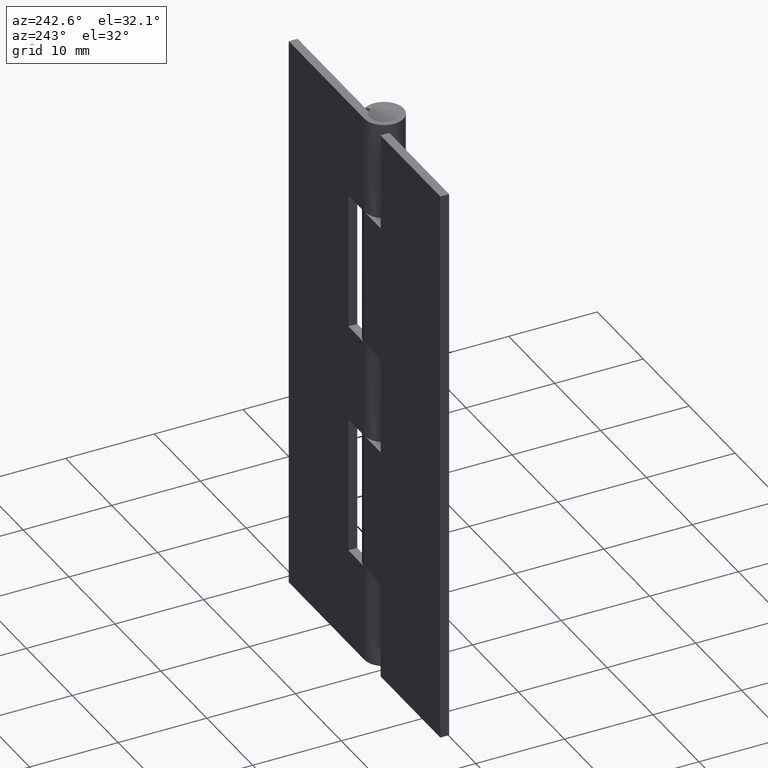
[diagram: clean part render]
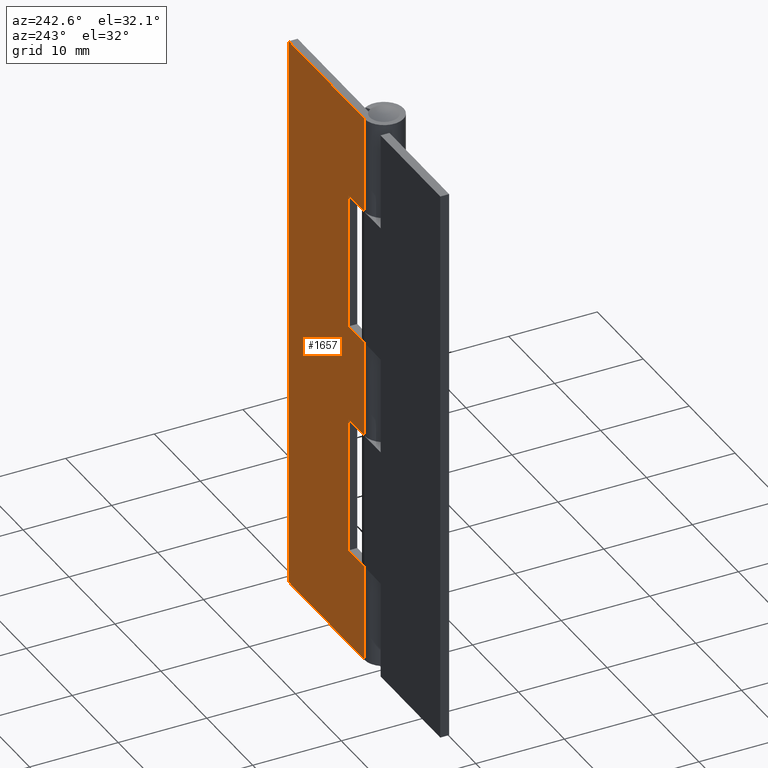
[diagram: same view with one face highlighted and labeled with its STEP entity id]
A machine part, auxiliary view. The second image highlights one B-rep face of the part: STEP entity #1657.
In plain terms, the highlighted face is a freeform B-spline surface patch.
Its self-contained STEP definition (entity closure, byte-faithful):
#1159=CARTESIAN_POINT('',(1.421085E-014,2.199996000000000,64.0));
#1160=VERTEX_POINT('',#1159);
#1161=CARTESIAN_POINT('',(1.431147E-014,2.199996000000000,53.0));
#1162=VERTEX_POINT('',#1161);
#1163=CARTESIAN_POINT('',(1.421085E-014,2.199996000000000,64.0));
#1164=CARTESIAN_POINT('',(1.431147E-014,2.199996000000000,53.0));
#1165=QUASI_UNIFORM_CURVE('',1,(#1163,#1164),.UNSPECIFIED.,.F.,.U.);
#1166=EDGE_CURVE('',#1160,#1162,#1165,.T.);
#1236=CARTESIAN_POINT('',(3.500000000000000,2.199996000000000,53.0));
#1237=VERTEX_POINT('',#1236);
#1238=CARTESIAN_POINT('',(3.500000000000000,2.199996000000000,53.0));
#1239=CARTESIAN_POINT('',(1.431147E-014,2.199996000000000,53.0));
#1240=QUASI_UNIFORM_CURVE('',1,(#1238,#1239),.UNSPECIFIED.,.F.,.U.);
#1241=EDGE_CURVE('',#1237,#1162,#1240,.T.);
#1261=CARTESIAN_POINT('',(3.500000000000000,2.199996000000000,37.500000000000000));
#1262=VERTEX_POINT('',#1261);
#1263=CARTESIAN_POINT('',(3.500000000000000,2.199996000000000,37.500000000000000));
#1264=CARTESIAN_POINT('',(3.500000000000000,2.199996000000000,53.0));
#1265=QUASI_UNIFORM_CURVE('',1,(#1263,#1264),.UNSPECIFIED.,.F.,.U.);
#1266=EDGE_CURVE('',#1262,#1237,#1265,.T.);
#1292=CARTESIAN_POINT('',(1.431147E-014,2.199996000000000,37.500000000000000));
#1293=VERTEX_POINT('',#1292);
#1294=CARTESIAN_POINT('',(1.431147E-014,2.199996000000000,37.500000000000000));
#1295=CARTESIAN_POINT('',(3.500000000000000,2.199996000000000,37.500000000000000));
#1296=QUASI_UNIFORM_CURVE('',1,(#1294,#1295),.UNSPECIFIED.,.F.,.U.);
#1297=EDGE_CURVE('',#1293,#1262,#1296,.T.);
#1337=CARTESIAN_POINT('',(3.500000000000000,2.199996000000000,26.500000000000000));
#1338=VERTEX_POINT('',#1337);
#1339=CARTESIAN_POINT('',(1.431147E-014,2.199996000000000,26.500000000000000));
#1340=VERTEX_POINT('',#1339);
#1341=CARTESIAN_POINT('',(3.500000000000000,2.199996000000000,26.500000000000000));
#1342=CARTESIAN_POINT('',(1.431147E-014,2.199996000000000,26.500000000000000));
#1343=QUASI_UNIFORM_CURVE('',1,(#1341,#1342),.UNSPECIFIED.,.F.,.U.);
#1344=EDGE_CURVE('',#1338,#1340,#1343,.T.);
#1398=CARTESIAN_POINT('',(3.500000000000000,2.199996000000000,11.0));
#1399=VERTEX_POINT('',#1398);
#1400=CARTESIAN_POINT('',(3.500000000000000,2.199996000000000,11.0));
#1401=CARTESIAN_POINT('',(3.500000000000000,2.199996000000000,26.500000000000000));
#1402=QUASI_UNIFORM_CURVE('',1,(#1400,#1401),.UNSPECIFIED.,.F.,.U.);
#1403=EDGE_CURVE('',#1399,#1338,#1402,.T.);
#1429=CARTESIAN_POINT('',(1.431147E-014,2.199996000000000,11.0));
#1430=VERTEX_POINT('',#1429);
#1431=CARTESIAN_POINT('',(1.431147E-014,2.199996000000000,11.0));
#1432=CARTESIAN_POINT('',(3.500000000000000,2.199996000000000,11.0));
#1433=QUASI_UNIFORM_CURVE('',1,(#1431,#1432),.UNSPECIFIED.,.F.,.U.);
#1434=EDGE_CURVE('',#1430,#1399,#1433,.T.);
#1476=CARTESIAN_POINT('',(1.421085E-014,2.199996000000000,0.0));
#1477=VERTEX_POINT('',#1476);
#1507=CARTESIAN_POINT('',(16.500000000000000,2.199996000000000,0.0));
#1508=VERTEX_POINT('',#1507);
#1509=CARTESIAN_POINT('',(1.421085E-014,2.199996000000000,0.0));
#1510=CARTESIAN_POINT('',(16.500000000000000,2.199996000000000,0.0));
#1511=QUASI_UNIFORM_CURVE('',1,(#1509,#1510),.UNSPECIFIED.,.F.,.U.);
#1512=EDGE_CURVE('',#1477,#1508,#1511,.T.);
#1538=CARTESIAN_POINT('',(16.500000000000000,2.199996000000000,64.0));
#1539=VERTEX_POINT('',#1538);
#1545=CARTESIAN_POINT('',(1.421085E-014,2.199996000000000,64.0));
#1546=CARTESIAN_POINT('',(16.500000000000000,2.199996000000000,64.0));
#1547=QUASI_UNIFORM_CURVE('',1,(#1545,#1546),.UNSPECIFIED.,.F.,.U.);
#1548=EDGE_CURVE('',#1160,#1539,#1547,.T.);
#1559=CARTESIAN_POINT('',(16.500000000000000,2.199996000000000,64.0));
#1560=CARTESIAN_POINT('',(16.500000000000000,2.199996000000000,0.0));
#1561=QUASI_UNIFORM_CURVE('',1,(#1559,#1560),.UNSPECIFIED.,.F.,.U.);
#1562=EDGE_CURVE('',#1539,#1508,#1561,.T.);
#1609=CARTESIAN_POINT('',(1.431147E-014,2.199996000000000,11.0));
#1610=CARTESIAN_POINT('',(1.421085E-014,2.199996000000000,0.0));
#1611=QUASI_UNIFORM_CURVE('',1,(#1609,#1610),.UNSPECIFIED.,.F.,.U.);
#1612=EDGE_CURVE('',#1430,#1477,#1611,.T.);
#1634=CARTESIAN_POINT('',(-0.824174968019784,2.199996000000000,-3.196799875955581));
#1635=CARTESIAN_POINT('',(-0.824174968019784,2.199996000000000,67.196801592569358));
#1636=CARTESIAN_POINT('',(17.324175410584289,2.199996000000000,-3.196799875955581));
#1637=CARTESIAN_POINT('',(17.324175410584289,2.199996000000000,67.196801592569358));
#1638=B_SPLINE_SURFACE_WITH_KNOTS('',1,1,((#1634,#1636),(#1635,#1637)),.UNSPECIFIED.,.F.,.F.,.U.,(2,2),(2,2),(0.0,70.393601468524935),(0.0,18.148350378604071),.UNSPECIFIED.);
#1639=CARTESIAN_POINT('',(1.431147E-014,2.199996000000000,37.500000000000000));
#1640=CARTESIAN_POINT('',(1.431147E-014,2.199996000000000,26.500000000000000));
#1641=QUASI_UNIFORM_CURVE('',1,(#1639,#1640),.UNSPECIFIED.,.F.,.U.);
#1642=EDGE_CURVE('',#1293,#1340,#1641,.T.);
#1643=ORIENTED_EDGE('',*,*,#1642,.F.);
#1644=ORIENTED_EDGE('',*,*,#1297,.T.);
#1645=ORIENTED_EDGE('',*,*,#1266,.T.);
#1646=ORIENTED_EDGE('',*,*,#1241,.T.);
#1647=ORIENTED_EDGE('',*,*,#1166,.F.);
#1648=ORIENTED_EDGE('',*,*,#1548,.T.);
#1649=ORIENTED_EDGE('',*,*,#1562,.T.);
#1650=ORIENTED_EDGE('',*,*,#1512,.F.);
#1651=ORIENTED_EDGE('',*,*,#1612,.F.);
#1652=ORIENTED_EDGE('',*,*,#1434,.T.);
#1653=ORIENTED_EDGE('',*,*,#1403,.T.);
#1654=ORIENTED_EDGE('',*,*,#1344,.T.);
#1655=EDGE_LOOP('',(#1643,#1644,#1645,#1646,#1647,#1648,#1649,#1650,#1651,#1652,#1653,#1654));
#1656=FACE_OUTER_BOUND('',#1655,.T.);
#1657=ADVANCED_FACE('',(#1656),#1638,.T.);